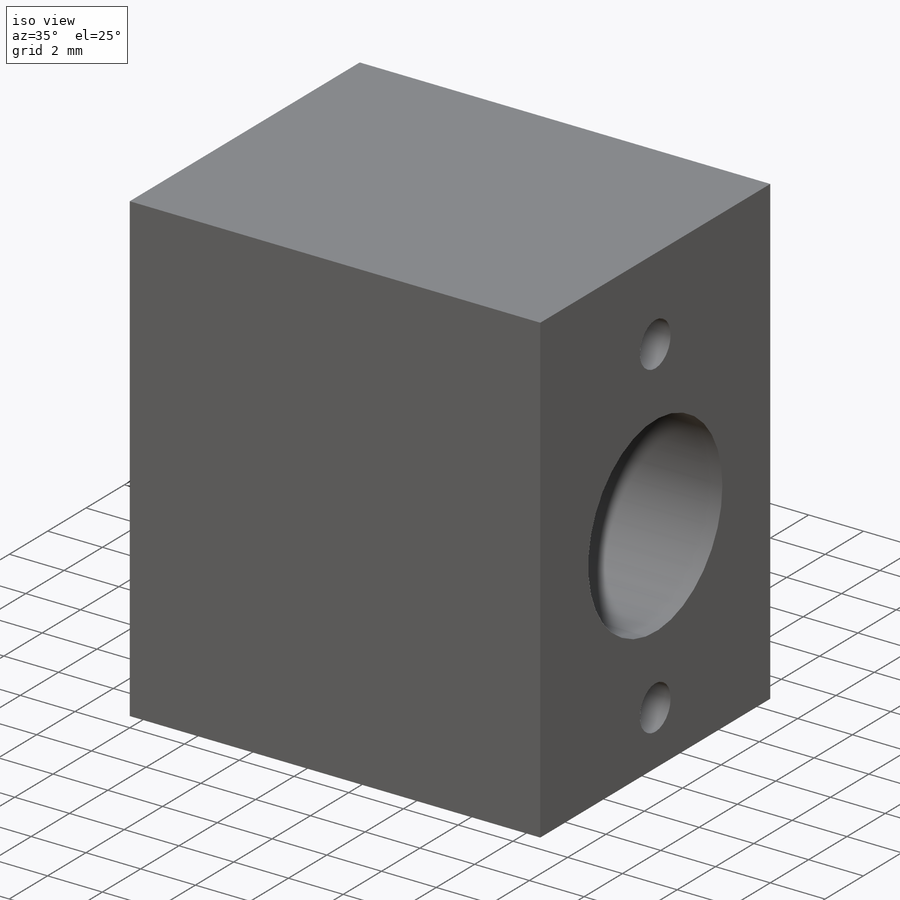
[diagram: iso view]
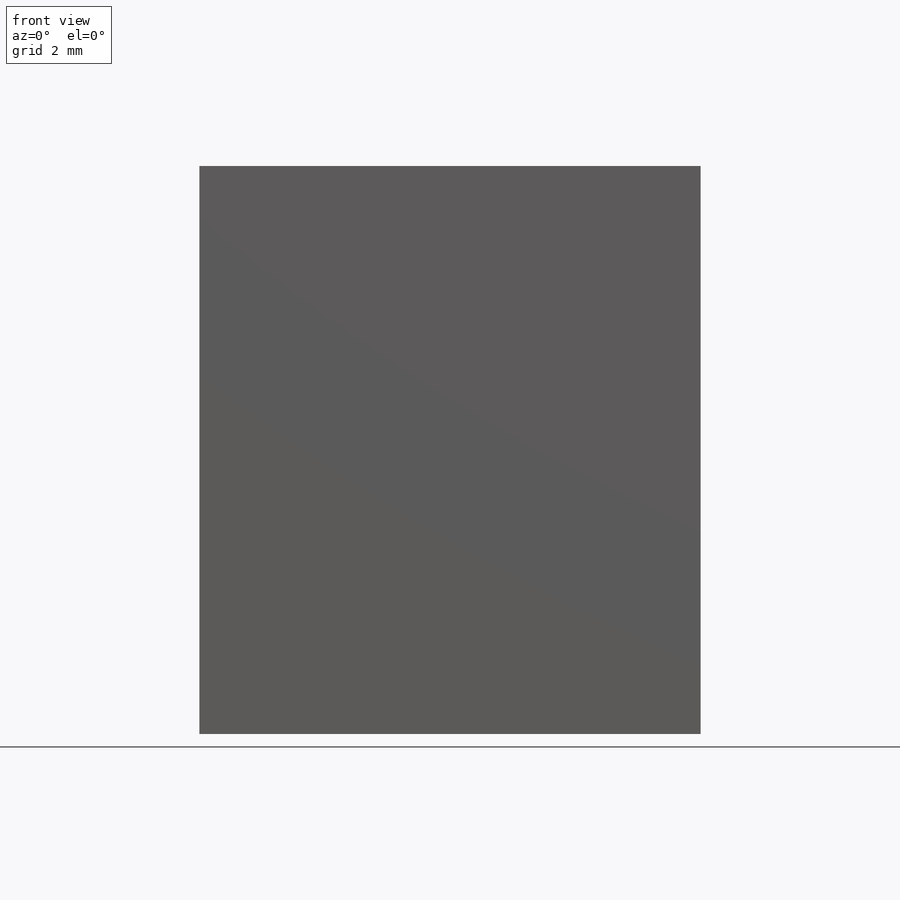
[diagram: front view]
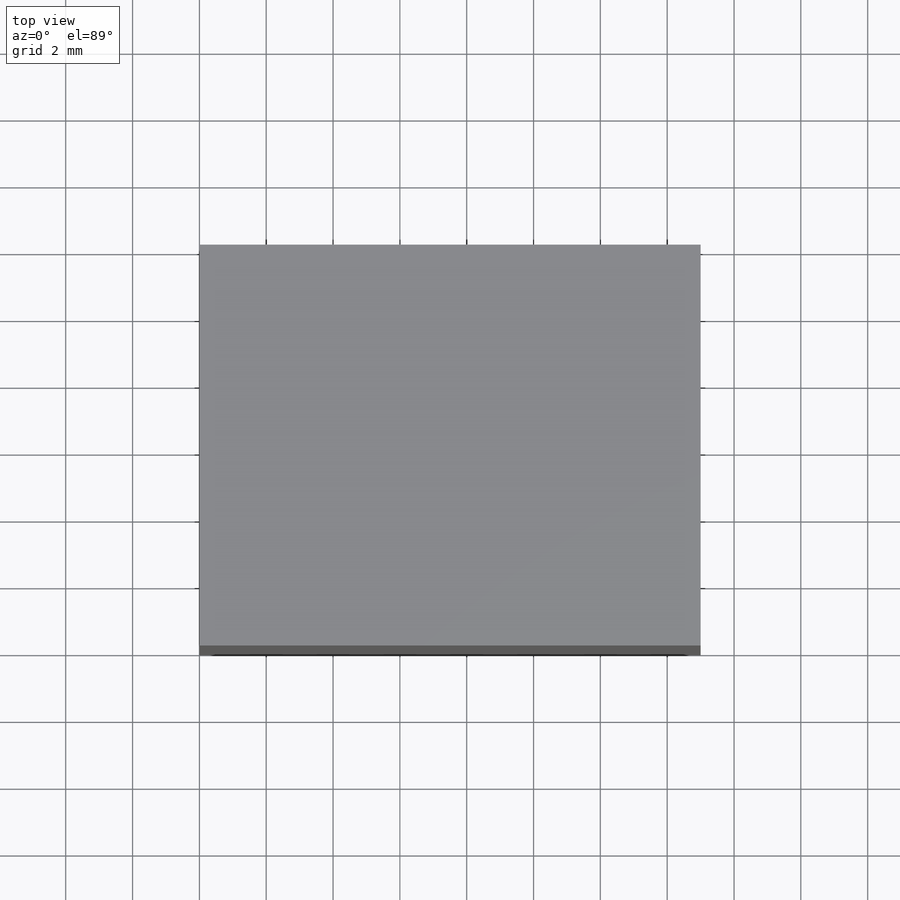
[diagram: top view]
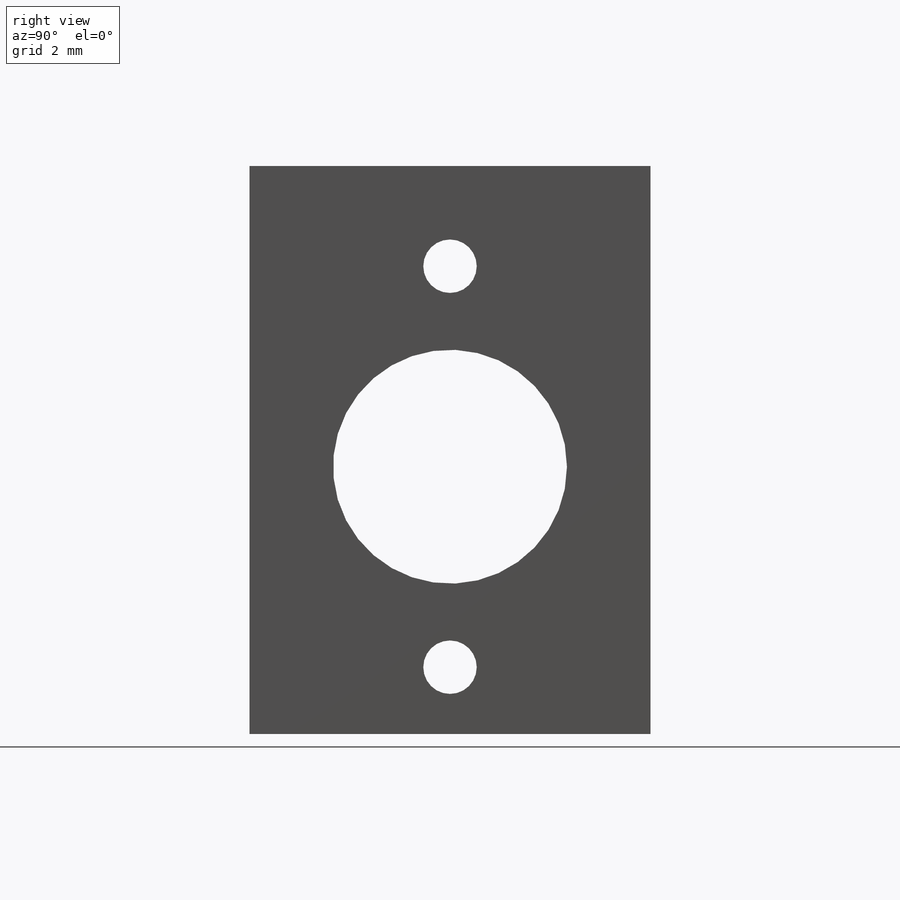
[diagram: right view]
SOLIDWORKS PART (.sldprt)
format: sldprt  version: not decoded by parser v0  size: 275,968 bytes
history: native  units: mm
features: sketch x8, extrude x2, cut_extrude x2, hole x2, material x1, chamfer x1 (+12 scaffold rows collapsed)
feature tree (28):
  scaffold x12  (default folders/planes/origin — collapsed)
  material  "PBT General Purpose"
  sketch  "Sketch1"  dims[c1.D1=15.5mm c1.D2=6.5mm c1.D3=15.0mm c1.D4=3.0mm c1.D5=5.0mm c2.D1=14.0mm]
  extrude  "Boss-Extrude1"  Depth=6mm
  sketch  "Sketch2"  dims[D1=7.0mm D2=8.0mm]
  cut_extrude  "Cut-Extrude1"  Depth=9.5mm
  sketch  "Sketch3"  dims[D1=2.5mm]
  cut_extrude  "Cut-Extrude2"  Depth=9.5mm
  chamfer  "Chamfer1"  Distance=3mm Angle=45deg
  hole  "Tap Drill for M2 Tap2"  Diameter=1.6mm Depth=15mm
  sketch  "Sketch8"  dims[D1=12.0mm]
  sketch  "Sketch7"  dims[hole-wizard template sketch: 60 standard entries collapsed; hole parameters kept: c18.Thru Hole Depth=15.0mm]
  sketch  "Sketch10"  dims[D1=0.0mm]
  extrude  "Boss-Extrude2"  [1 undecoded]
  hole  "Tap Drill for M2 Tap1"  Diameter=1.6mm Depth=5mm
  sketch  "Sketch5"  dims[D1=6.0mm D2=6.5mm D3=3.85mm]
  sketch  "Sketch4"  dims[hole-wizard template sketch: 49 standard entries collapsed; hole parameters kept: c15.Drill Angle=180.0deg]
decode coverage: 14 of 15 modeling features carry decoded parameters
note: ~ marks probable driven/reference dimensions
note: 1 parameter value undecoded
note: suppression state not decoded; provenance and decode notes live in map.json
